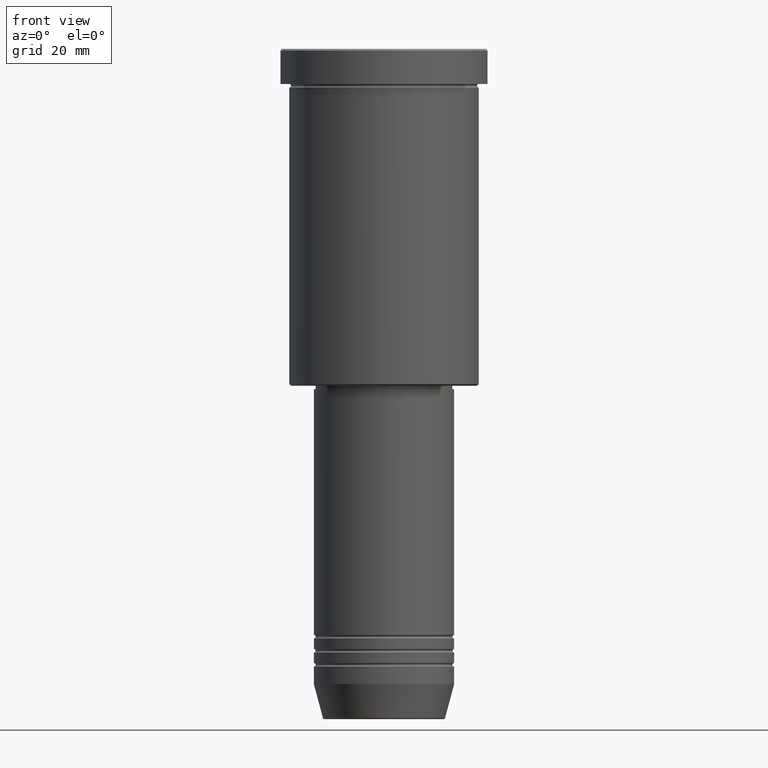
[diagram: clean part render]
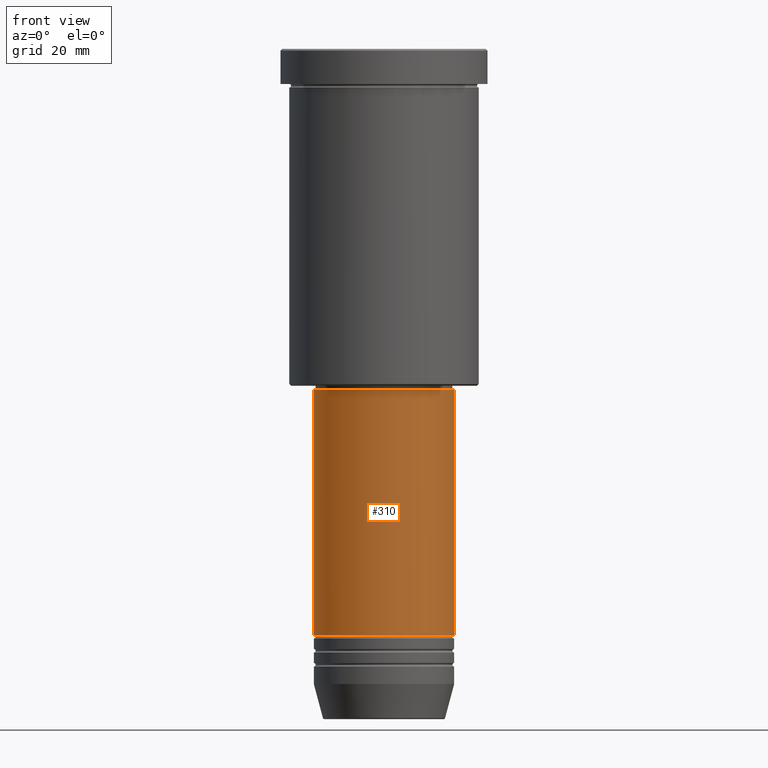
[diagram: same view with one face highlighted and labeled with its STEP entity id]
A machine part, front view. The second image highlights one B-rep face of the part: STEP entity #310.
In plain terms, the highlighted cylindrical surface (partial cylindrical patch) has radius 20 mm, axis along (-0, -0, 1).
Its self-contained STEP definition (entity closure, byte-faithful):
#16 = CARTESIAN_POINT ( 'NONE',  ( 19.99999999999999645, 0.000000000000000000, -97.00000000000002842 ) ) ;
#35 = VECTOR ( 'NONE', #386, 1000.000000000000000 ) ;
#42 = EDGE_CURVE ( 'NONE', #1171, #254, #507, .T. ) ;
#91 = ORIENTED_EDGE ( 'NONE', *, *, #42, .F. ) ;
#182 = ORIENTED_EDGE ( 'NONE', *, *, #974, .F. ) ;
#183 = CARTESIAN_POINT ( 'NONE',  ( 20.00000000000000000, 0.000000000000000000, -166.9999999999998863 ) ) ;
#191 = ORIENTED_EDGE ( 'NONE', *, *, #788, .T. ) ;
#202 = CYLINDRICAL_SURFACE ( 'NONE', #705, 19.99999999999999645 ) ;
#231 = DIRECTION ( 'NONE',  ( 1.000000000000000000, 0.000000000000000000, 0.000000000000000000 ) ) ;
#254 = VERTEX_POINT ( 'NONE', #16 ) ;
#298 = EDGE_CURVE ( 'NONE', #342, #254, #942, .T. ) ;
#310 = ADVANCED_FACE ( 'NONE', ( #659 ), #202, .T. ) ;
#318 = LINE ( 'NONE', #1058, #1015 ) ;
#342 = VERTEX_POINT ( 'NONE', #183 ) ;
#345 = DIRECTION ( 'NONE',  ( 1.000000000000000000, 0.000000000000000000, 0.000000000000000000 ) ) ;
#365 = CARTESIAN_POINT ( 'NONE',  ( 19.99999999999999645, 0.000000000000000000, 0.000000000000000000 ) ) ;
#386 = DIRECTION ( 'NONE',  ( -0.000000000000000000, -0.000000000000000000, 1.000000000000000000 ) ) ;
#406 = CARTESIAN_POINT ( 'NONE',  ( 0.000000000000000000, 0.000000000000000000, -97.00000000000002842 ) ) ;
#507 = CIRCLE ( 'NONE', #1037, 19.99999999999999645 ) ;
#551 = DIRECTION ( 'NONE',  ( -0.000000000000000000, -0.000000000000000000, 1.000000000000000000 ) ) ;
#554 = AXIS2_PLACEMENT_3D ( 'NONE', #899, #551, #345 ) ;
#557 = CARTESIAN_POINT ( 'NONE',  ( 0.000000000000000000, 0.000000000000000000, 0.000000000000000000 ) ) ;
#659 = FACE_OUTER_BOUND ( 'NONE', #1049, .T. ) ;
#664 = ORIENTED_EDGE ( 'NONE', *, *, #298, .T. ) ;
#705 = AXIS2_PLACEMENT_3D ( 'NONE', #557, #852, #921 ) ;
#715 = CARTESIAN_POINT ( 'NONE',  ( -19.99999999999999645, 2.449293598294706119E-15, -97.00000000000002842 ) ) ;
#744 = CIRCLE ( 'NONE', #554, 20.00000000000000000 ) ;
#788 = EDGE_CURVE ( 'NONE', #872, #342, #744, .T. ) ;
#852 = DIRECTION ( 'NONE',  ( -0.000000000000000000, -0.000000000000000000, 1.000000000000000000 ) ) ;
#872 = VERTEX_POINT ( 'NONE', #1125 ) ;
#899 = CARTESIAN_POINT ( 'NONE',  ( 0.000000000000000000, 0.000000000000000000, -166.9999999999998863 ) ) ;
#921 = DIRECTION ( 'NONE',  ( 1.000000000000000000, 0.000000000000000000, 0.000000000000000000 ) ) ;
#942 = LINE ( 'NONE', #365, #35 ) ;
#974 = EDGE_CURVE ( 'NONE', #872, #1171, #318, .T. ) ;
#1015 = VECTOR ( 'NONE', #1151, 1000.000000000000000 ) ;
#1037 = AXIS2_PLACEMENT_3D ( 'NONE', #406, #1067, #231 ) ;
#1049 = EDGE_LOOP ( 'NONE', ( #182, #191, #664, #91 ) ) ;
#1058 = CARTESIAN_POINT ( 'NONE',  ( -19.99999999999999645, 2.449293598294706119E-15, 0.000000000000000000 ) ) ;
#1067 = DIRECTION ( 'NONE',  ( -0.000000000000000000, -0.000000000000000000, 1.000000000000000000 ) ) ;
#1125 = CARTESIAN_POINT ( 'NONE',  ( -20.00000000000000000, 2.449293598294706513E-15, -166.9999999999998863 ) ) ;
#1151 = DIRECTION ( 'NONE',  ( -0.000000000000000000, -0.000000000000000000, 1.000000000000000000 ) ) ;
#1171 = VERTEX_POINT ( 'NONE', #715 ) ;